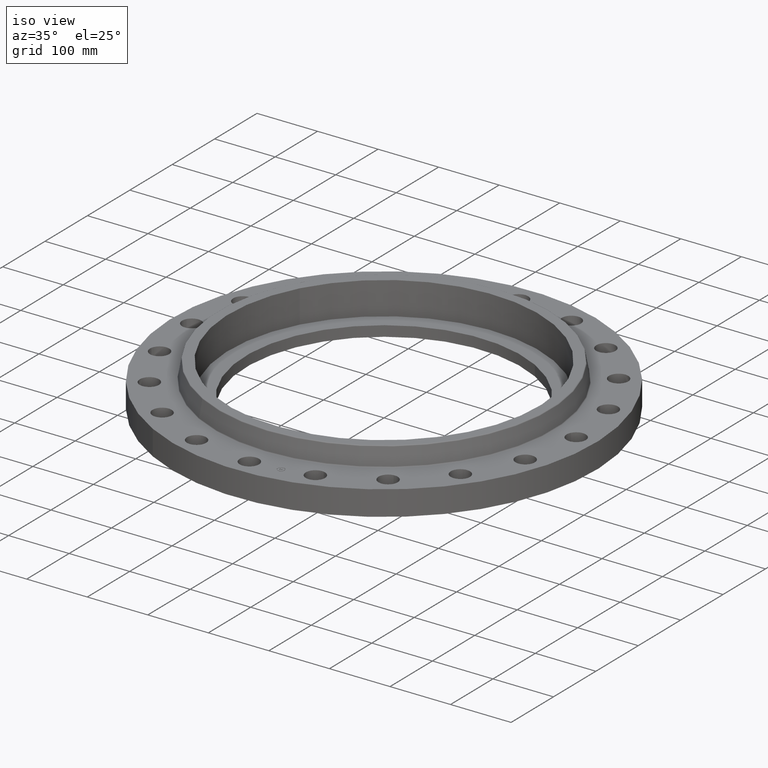
[diagram: clean part render]
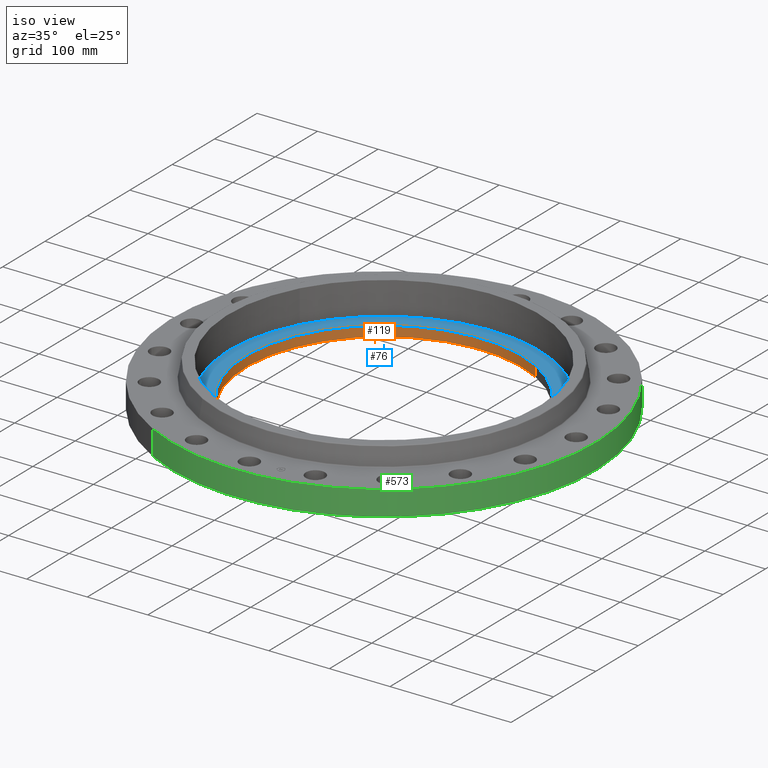
[diagram: same view with three faces highlighted in distinct colors, each labeled with its STEP entity id]
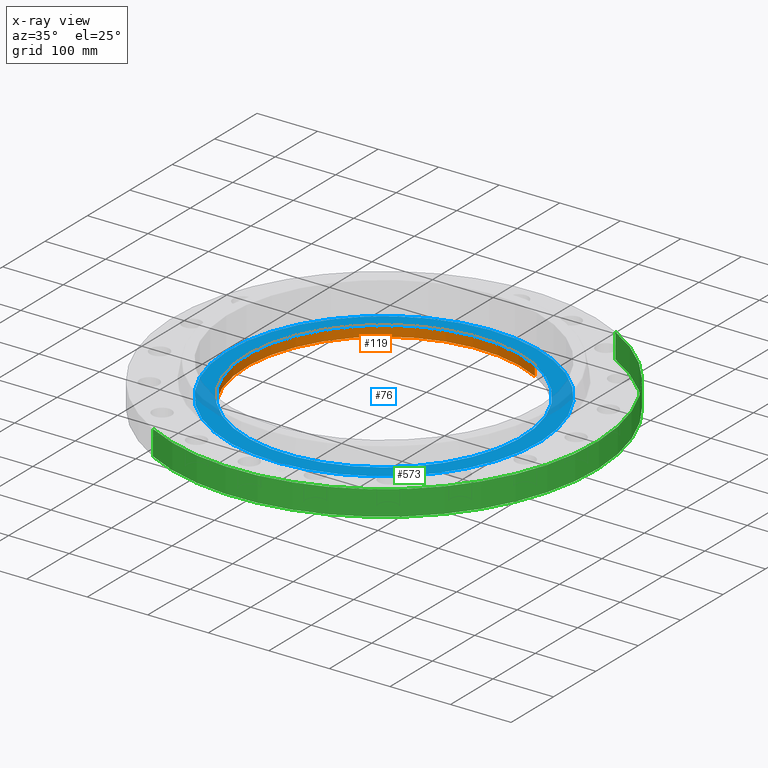
[diagram: x-ray of the same camera — body ghosted, the three highlighted faces saturated]
A machine part, iso view with three faces highlighted in distinct colors.
The next image is the same camera in x-ray (body ghosted, the three faces saturated) — at least one of them is partly hidden behind the body in this view.
Their STEP definitions:

[orange] entity #119 — the highlighted cylindrical surface (partial cylindrical patch) has radius 227.813 mm, axis along (0, 0, -1).
#60=AXIS2_PLACEMENT_3D('Circle Axis2P3D',#58,#59,$) ;
#80=AXIS2_PLACEMENT_3D('Cylinder Axis2P3D',#77,#78,#79) ;
#110=AXIS2_PLACEMENT_3D('Circle Axis2P3D',#108,#109,$) ;
#58=CARTESIAN_POINT('Axis2P3D Location',(-2.23792987641E-015,-9.09159012291E-016,0.680000000003)) ;
#62=CARTESIAN_POINT('Vertex',(-4.29996765576,-7.87103799763,0.680000000003)) ;
#64=CARTESIAN_POINT('Vertex',(4.29996765576,7.87103799763,0.680000000003)) ;
#77=CARTESIAN_POINT('Axis2P3D Location',(0.,0.,1.40500000001)) ;
#82=CARTESIAN_POINT('Line Origine',(4.29996765576,7.87103799763,0.340000000001)) ;
#86=CARTESIAN_POINT('Vertex',(4.29996765576,7.87103799763,-6.99353086378E-014)) ;
#93=CARTESIAN_POINT('Vertex',(-4.29996765576,-7.87103799763,-6.99353086378E-014)) ;
#96=CARTESIAN_POINT('Line Origine',(-4.29996765576,-7.87103799763,0.340000000001)) ;
#108=CARTESIAN_POINT('Axis2P3D Location',(0.,0.,-6.99353086378E-014)) ;
#59=DIRECTION('Axis2P3D Direction',(0.,0.,-0.0393700787402)) ;
#78=DIRECTION('Axis2P3D Direction',(0.,0.,-0.0393700787402)) ;
#79=DIRECTION('Axis2P3D XDirection',(-0.0188750212049,-0.0345504945626,0.)) ;
#83=DIRECTION('Vector Direction',(0.,0.,-0.0393700787402)) ;
#97=DIRECTION('Vector Direction',(0.,0.,-0.0393700787402)) ;
#109=DIRECTION('Axis2P3D Direction',(0.,0.,-0.0393700787402)) ;
#84=VECTOR('Line Direction',#83,0.0393700787402) ;
#98=VECTOR('Line Direction',#97,0.0393700787402) ;
#114=ORIENTED_EDGE('',*,*,#100,.T.) ;
#115=ORIENTED_EDGE('',*,*,#112,.T.) ;
#116=ORIENTED_EDGE('',*,*,#88,.F.) ;
#117=ORIENTED_EDGE('',*,*,#66,.F.) ;
#119=ADVANCED_FACE('PartBody',(#118),#81,.F.) ;
#61=CIRCLE('generated circle',#60,8.96900000004) ;
#111=CIRCLE('generated circle',#110,8.96900000004) ;
#81=CYLINDRICAL_SURFACE('generated cylinder',#80,8.96900000004) ;
#66=EDGE_CURVE('',#63,#65,#61,.T.) ;
#88=EDGE_CURVE('',#65,#87,#85,.T.) ;
#100=EDGE_CURVE('',#63,#94,#99,.T.) ;
#112=EDGE_CURVE('',#94,#87,#111,.T.) ;
#113=EDGE_LOOP('',(#114,#115,#116,#117)) ;
#118=FACE_OUTER_BOUND('',#113,.T.) ;
#85=LINE('Line',#82,#84) ;
#99=LINE('Line',#96,#98) ;
#63=VERTEX_POINT('',#62) ;
#65=VERTEX_POINT('',#64) ;
#87=VERTEX_POINT('',#86) ;
#94=VERTEX_POINT('',#93) ;

[blue] entity #76 — the highlighted planar face has unit normal (0, 0, -1).
#38=AXIS2_PLACEMENT_3D('Plane Axis2P3D',#35,#36,#37) ;
#42=AXIS2_PLACEMENT_3D('Circle Axis2P3D',#40,#41,$) ;
#51=AXIS2_PLACEMENT_3D('Circle Axis2P3D',#49,#50,$) ;
#60=AXIS2_PLACEMENT_3D('Circle Axis2P3D',#58,#59,$) ;
#69=AXIS2_PLACEMENT_3D('Circle Axis2P3D',#67,#68,$) ;
#35=CARTESIAN_POINT('Axis2P3D Location',(0.,-6.99353086378E-017,0.680000000003)) ;
#40=CARTESIAN_POINT('Axis2P3D Location',(0.,-6.99353086378E-017,0.680000000003)) ;
#44=CARTESIAN_POINT('Vertex',(-8.86358387513,4.84219793992,0.680000000003)) ;
#46=CARTESIAN_POINT('Vertex',(8.86358387513,-4.84219793992,0.680000000003)) ;
#49=CARTESIAN_POINT('Axis2P3D Location',(0.,-6.99353086378E-017,0.680000000003)) ;
#58=CARTESIAN_POINT('Axis2P3D Location',(-2.23792987641E-015,-9.09159012291E-016,0.680000000003)) ;
#62=CARTESIAN_POINT('Vertex',(-4.29996765576,-7.87103799763,0.680000000003)) ;
#64=CARTESIAN_POINT('Vertex',(4.29996765576,7.87103799763,0.680000000003)) ;
#67=CARTESIAN_POINT('Axis2P3D Location',(-1.1189649382E-015,2.09805925913E-016,0.680000000003)) ;
#36=DIRECTION('Axis2P3D Direction',(0.,0.,-0.0393700787402)) ;
#37=DIRECTION('Axis2P3D XDirection',(0.0393700787402,0.,0.)) ;
#41=DIRECTION('Axis2P3D Direction',(0.,0.,-0.0393700787402)) ;
#50=DIRECTION('Axis2P3D Direction',(0.,0.,-0.0393700787402)) ;
#59=DIRECTION('Axis2P3D Direction',(0.,0.,-0.0393700787402)) ;
#68=DIRECTION('Axis2P3D Direction',(0.,0.,-0.0393700787402)) ;
#55=ORIENTED_EDGE('',*,*,#48,.F.) ;
#56=ORIENTED_EDGE('',*,*,#53,.F.) ;
#73=ORIENTED_EDGE('',*,*,#66,.T.) ;
#74=ORIENTED_EDGE('',*,*,#71,.T.) ;
#75=FACE_BOUND('',#72,.T.) ;
#76=ADVANCED_FACE('PartBody',(#57,#75),#39,.F.) ;
#43=CIRCLE('generated circle',#42,10.1) ;
#52=CIRCLE('generated circle',#51,10.1) ;
#61=CIRCLE('generated circle',#60,8.96900000004) ;
#70=CIRCLE('generated circle',#69,8.96900000004) ;
#48=EDGE_CURVE('',#45,#47,#43,.T.) ;
#53=EDGE_CURVE('',#47,#45,#52,.T.) ;
#66=EDGE_CURVE('',#63,#65,#61,.T.) ;
#71=EDGE_CURVE('',#65,#63,#70,.T.) ;
#54=EDGE_LOOP('',(#55,#56)) ;
#72=EDGE_LOOP('',(#73,#74)) ;
#57=FACE_OUTER_BOUND('',#54,.T.) ;
#39=PLANE('',#38) ;
#45=VERTEX_POINT('',#44) ;
#47=VERTEX_POINT('',#46) ;
#63=VERTEX_POINT('',#62) ;
#65=VERTEX_POINT('',#64) ;

[green] entity #573 — the highlighted cylindrical surface (partial cylindrical patch) has radius 349.25 mm, axis along (0, 0, -1).
#159=AXIS2_PLACEMENT_3D('Circle Axis2P3D',#157,#158,$) ;
#534=AXIS2_PLACEMENT_3D('Cylinder Axis2P3D',#531,#532,#533) ;
#564=AXIS2_PLACEMENT_3D('Circle Axis2P3D',#562,#563,$) ;
#152=CARTESIAN_POINT('Vertex',(-6.59210115583,-12.066760226,1.67844740731E-015)) ;
#154=CARTESIAN_POINT('Vertex',(6.59210115583,12.066760226,1.67844740731E-015)) ;
#157=CARTESIAN_POINT('Axis2P3D Location',(0.,0.,0.)) ;
#531=CARTESIAN_POINT('Axis2P3D Location',(0.,0.,1.40500000001)) ;
#536=CARTESIAN_POINT('Line Origine',(-6.59210115583,-12.066760226,0.810000000003)) ;
#540=CARTESIAN_POINT('Vertex',(-6.59210115583,-12.066760226,1.62000000001)) ;
#547=CARTESIAN_POINT('Vertex',(6.59210115583,12.066760226,1.62000000001)) ;
#550=CARTESIAN_POINT('Line Origine',(6.59210115583,12.066760226,0.810000000003)) ;
#562=CARTESIAN_POINT('Axis2P3D Location',(0.,0.,1.62000000001)) ;
#158=DIRECTION('Axis2P3D Direction',(0.,0.,-0.0393700787402)) ;
#532=DIRECTION('Axis2P3D Direction',(0.,0.,-0.0393700787402)) ;
#533=DIRECTION('Axis2P3D XDirection',(0.0188750212049,0.0345504945626,0.)) ;
#537=DIRECTION('Vector Direction',(0.,0.,-0.0393700787402)) ;
#551=DIRECTION('Vector Direction',(0.,0.,-0.0393700787402)) ;
#563=DIRECTION('Axis2P3D Direction',(0.,0.,-0.0393700787402)) ;
#538=VECTOR('Line Direction',#537,0.0393700787402) ;
#552=VECTOR('Line Direction',#551,0.0393700787402) ;
#568=ORIENTED_EDGE('',*,*,#161,.F.) ;
#569=ORIENTED_EDGE('',*,*,#554,.T.) ;
#570=ORIENTED_EDGE('',*,*,#566,.T.) ;
#571=ORIENTED_EDGE('',*,*,#542,.F.) ;
#573=ADVANCED_FACE('PartBody',(#572),#535,.T.) ;
#160=CIRCLE('generated circle',#159,13.7500000001) ;
#565=CIRCLE('generated circle',#564,13.7500000001) ;
#535=CYLINDRICAL_SURFACE('generated cylinder',#534,13.7500000001) ;
#161=EDGE_CURVE('',#155,#153,#160,.T.) ;
#542=EDGE_CURVE('',#153,#541,#539,.F.) ;
#554=EDGE_CURVE('',#155,#548,#553,.F.) ;
#566=EDGE_CURVE('',#548,#541,#565,.T.) ;
#567=EDGE_LOOP('',(#568,#569,#570,#571)) ;
#572=FACE_OUTER_BOUND('',#567,.T.) ;
#539=LINE('Line',#536,#538) ;
#553=LINE('Line',#550,#552) ;
#153=VERTEX_POINT('',#152) ;
#155=VERTEX_POINT('',#154) ;
#541=VERTEX_POINT('',#540) ;
#548=VERTEX_POINT('',#547) ;